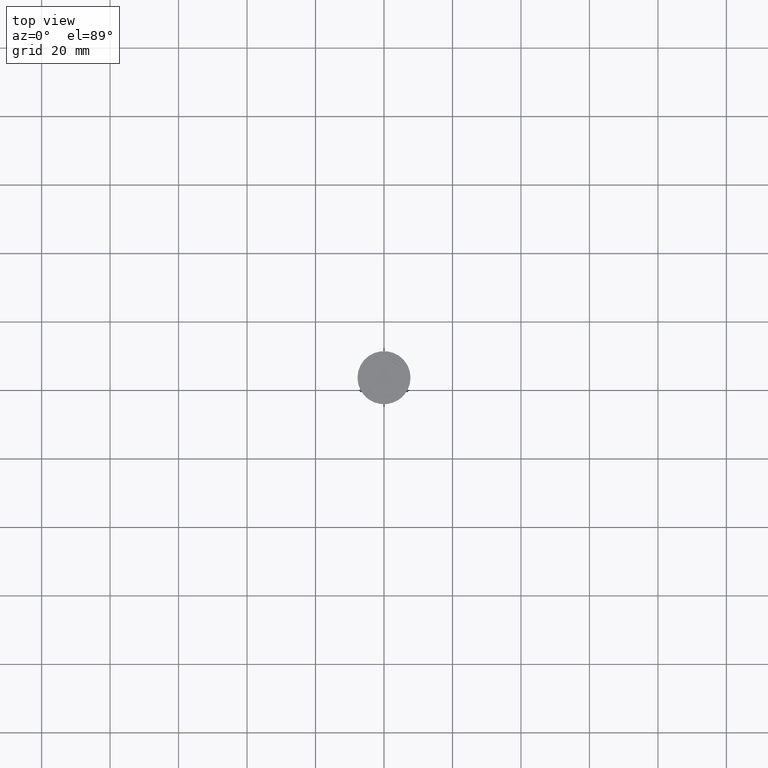
[diagram: clean part render]
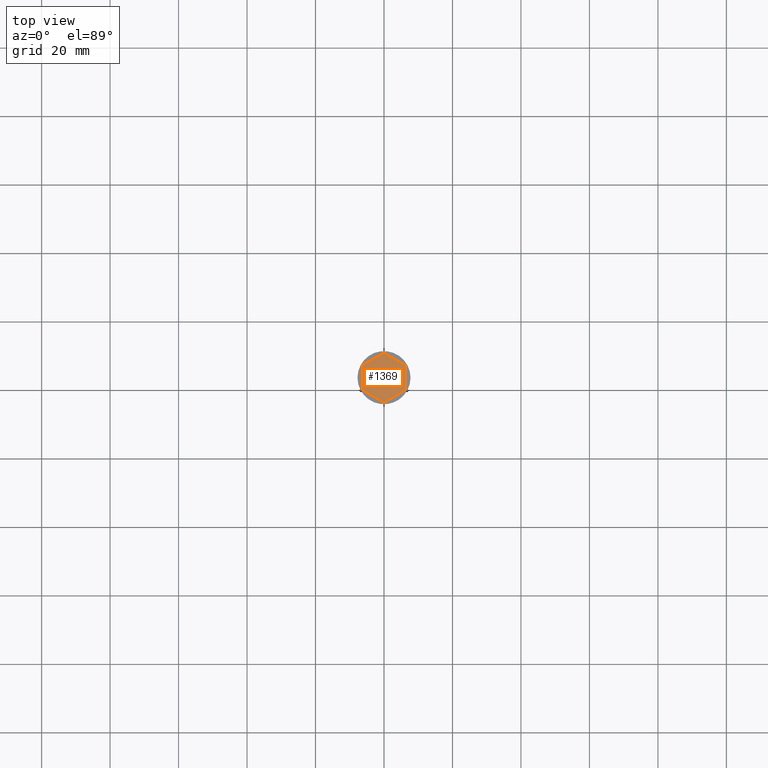
[diagram: same view with one face highlighted and labeled with its STEP entity id]
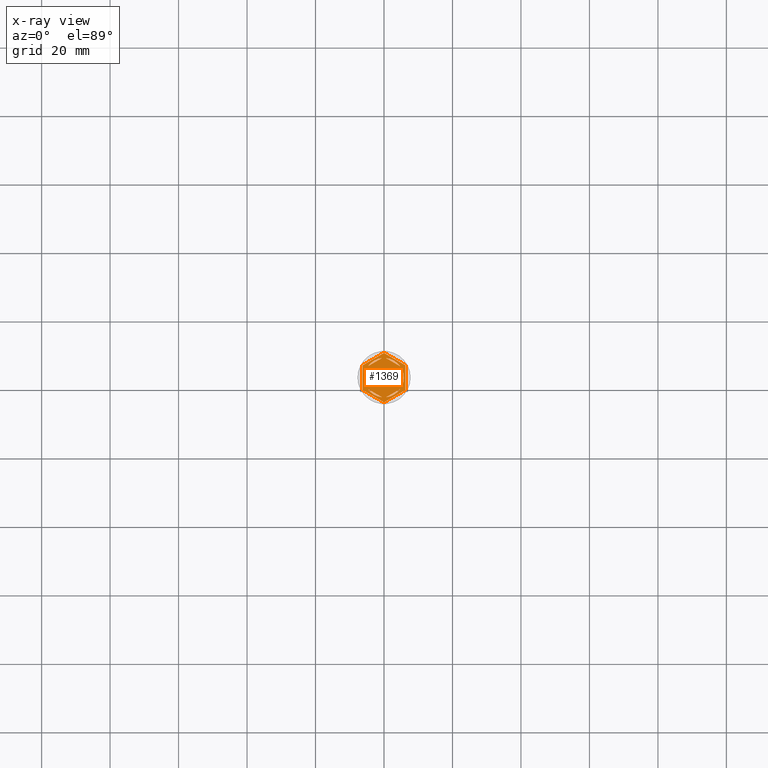
[diagram: x-ray of the same camera — body ghosted, the highlighted face saturated]
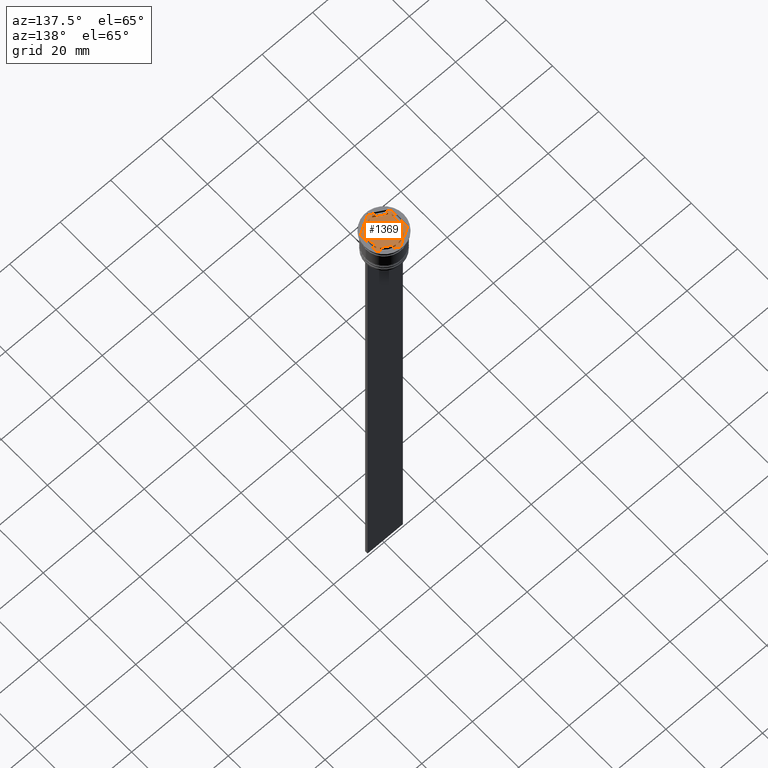
[diagram: same view with one face highlighted and labeled with its STEP entity id]
A machine part, top view. The second image highlights one B-rep face of the part: STEP entity #1369.
The next image is the same camera in x-ray: the body ghosted, the highlighted face saturated — about 0% of this face is hidden behind the body in this view.
A second angle (auxiliary view) of the same face is appended — the face is thin or edge-on in the first view.
In plain terms, the highlighted planar face has unit normal (0, 0, 1).
Its self-contained STEP definition (entity closure, byte-faithful):
#1 = CIRCLE ( 'NONE', #1660, 5.750000000000000000 ) ;
#61 = VERTEX_POINT ( 'NONE', #403 ) ;
#65 = ORIENTED_EDGE ( 'NONE', *, *, #239, .F. ) ;
#70 = VECTOR ( 'NONE', #743, 1000.000000000000000 ) ;
#86 = CARTESIAN_POINT ( 'NONE',  ( -5.249999999999999112, -2.345207879911715310, -1.000000000000000888 ) ) ;
#102 = DIRECTION ( 'NONE',  ( 0.000000000000000000, 0.000000000000000000, 1.000000000000000000 ) ) ;
#105 = CARTESIAN_POINT ( 'NONE',  ( 0.000000000000000000, 0.000000000000000000, -1.000000000000000000 ) ) ;
#107 = EDGE_CURVE ( 'NONE', #1466, #610, #1367, .T. ) ;
#123 = VECTOR ( 'NONE', #1155, 1000.000000000000000 ) ;
#125 = VECTOR ( 'NONE', #584, 1000.000000000000000 ) ;
#156 = DIRECTION ( 'NONE',  ( 0.000000000000000000, -1.000000000000000000, 0.000000000000000000 ) ) ;
#181 = CARTESIAN_POINT ( 'NONE',  ( 0.000000000000000000, 0.000000000000000000, -1.000000000000000000 ) ) ;
#196 = AXIS2_PLACEMENT_3D ( 'NONE', #859, #1916, #1370 ) ;
#213 = ORIENTED_EDGE ( 'NONE', *, *, #1393, .F. ) ;
#219 = CARTESIAN_POINT ( 'NONE',  ( 0.5939903988410074609, -5.719237309824160675, -1.000000000000000888 ) ) ;
#239 = EDGE_CURVE ( 'NONE', #2250, #1602, #1436, .T. ) ;
#287 = DIRECTION ( 'NONE',  ( -0.8660254037844384856, 0.5000000000000002220, 0.000000000000000000 ) ) ;
#308 = VERTEX_POINT ( 'NONE', #1133 ) ;
#344 = EDGE_CURVE ( 'NONE', #1278, #61, #1632, .T. ) ;
#357 = VERTEX_POINT ( 'NONE', #1282 ) ;
#374 = VERTEX_POINT ( 'NONE', #86 ) ;
#376 = CARTESIAN_POINT ( 'NONE',  ( -5.249999999999999112, 3.031088913245535199, -1.000000000000000888 ) ) ;
#392 = CIRCLE ( 'NONE', #2008, 5.750000000000000000 ) ;
#398 = VERTEX_POINT ( 'NONE', #1142 ) ;
#403 = CARTESIAN_POINT ( 'NONE',  ( 6.250000000000000000, 3.608439182435161374, -1.000000000000000000 ) ) ;
#407 = CARTESIAN_POINT ( 'NONE',  ( -0.5939903988410105695, -5.719237309824160675, -1.000000000000000888 ) ) ;
#415 = EDGE_CURVE ( 'NONE', #754, #1067, #966, .T. ) ;
#421 = ORIENTED_EDGE ( 'NONE', *, *, #1636, .F. ) ;
#425 = CARTESIAN_POINT ( 'NONE',  ( 4.656009601158990208, -3.374029429912445810, -1.000000000000000888 ) ) ;
#440 = DIRECTION ( 'NONE',  ( 0.000000000000000000, 0.000000000000000000, 1.000000000000000000 ) ) ;
#441 = ORIENTED_EDGE ( 'NONE', *, *, #2098, .F. ) ;
#453 = CARTESIAN_POINT ( 'NONE',  ( 0.000000000000000000, 0.000000000000000000, -1.000000000000000000 ) ) ;
#470 = CARTESIAN_POINT ( 'NONE',  ( -5.249999999999999112, -3.031088913245534311, -1.000000000000000888 ) ) ;
#475 = DIRECTION ( 'NONE',  ( 1.000000000000000000, 0.000000000000000000, 0.000000000000000000 ) ) ;
#483 = ORIENTED_EDGE ( 'NONE', *, *, #2014, .F. ) ;
#510 = CARTESIAN_POINT ( 'NONE',  ( -6.249999999999999112, -3.608439182435161374, -1.000000000000000000 ) ) ;
#542 = VERTEX_POINT ( 'NONE', #1951 ) ;
#545 = CIRCLE ( 'NONE', #949, 5.750000000000000000 ) ;
#584 = DIRECTION ( 'NONE',  ( 0.000000000000000000, 1.000000000000000000, 0.000000000000000000 ) ) ;
#610 = VERTEX_POINT ( 'NONE', #1244 ) ;
#620 = DIRECTION ( 'NONE',  ( -0.8660254037844385966, -0.5000000000000001110, 0.000000000000000000 ) ) ;
#648 = DIRECTION ( 'NONE',  ( 0.8660254037844387076, 0.4999999999999999445, -0.000000000000000000 ) ) ;
#661 = CARTESIAN_POINT ( 'NONE',  ( 0.000000000000000000, 0.000000000000000000, -1.000000000000000000 ) ) ;
#704 = EDGE_CURVE ( 'NONE', #357, #2233, #724, .T. ) ;
#713 = DIRECTION ( 'NONE',  ( 1.000000000000000000, 0.000000000000000000, 0.000000000000000000 ) ) ;
#724 = CIRCLE ( 'NONE', #909, 5.750000000000000000 ) ;
#725 = DIRECTION ( 'NONE',  ( 0.000000000000000000, 0.000000000000000000, 1.000000000000000000 ) ) ;
#730 = VECTOR ( 'NONE', #2223, 1000.000000000000114 ) ;
#742 = ORIENTED_EDGE ( 'NONE', *, *, #752, .T. ) ;
#743 = DIRECTION ( 'NONE',  ( 2.403703357979454647E-16, 1.000000000000000000, 0.000000000000000000 ) ) ;
#752 = EDGE_CURVE ( 'NONE', #610, #1278, #1630, .T. ) ;
#754 = VERTEX_POINT ( 'NONE', #407 ) ;
#775 = CARTESIAN_POINT ( 'NONE',  ( 0.000000000000000000, 7.216878364870320084, -1.000000000000000000 ) ) ;
#777 = VERTEX_POINT ( 'NONE', #1074 ) ;
#780 = FACE_BOUND ( 'NONE', #1516, .T. ) ;
#789 = EDGE_LOOP ( 'NONE', ( #2319, #1109, #1050 ) ) ;
#818 = EDGE_CURVE ( 'NONE', #1721, #1748, #1287, .T. ) ;
#848 = ORIENTED_EDGE ( 'NONE', *, *, #818, .F. ) ;
#851 = DIRECTION ( 'NONE',  ( 0.8660254037844387076, -0.4999999999999998335, 0.000000000000000000 ) ) ;
#859 = CARTESIAN_POINT ( 'NONE',  ( 0.000000000000000000, 0.000000000000000000, -1.000000000000000000 ) ) ;
#865 = CARTESIAN_POINT ( 'NONE',  ( 0.000000000000000000, 0.000000000000000000, -1.000000000000000000 ) ) ;
#868 = VECTOR ( 'NONE', #648, 1000.000000000000000 ) ;
#884 = DIRECTION ( 'NONE',  ( 0.8660254037844385966, -0.4999999999999998890, 0.000000000000000000 ) ) ;
#891 = CARTESIAN_POINT ( 'NONE',  ( -6.249999999999999112, 3.608439182435158710, -1.000000000000000000 ) ) ;
#893 = EDGE_LOOP ( 'NONE', ( #441, #65 ) ) ;
#909 = AXIS2_PLACEMENT_3D ( 'NONE', #181, #1456, #1985 ) ;
#916 = CARTESIAN_POINT ( 'NONE',  ( 6.249999999999998224, -3.608439182435161374, -1.000000000000000000 ) ) ;
#922 = LINE ( 'NONE', #376, #125 ) ;
#938 = CARTESIAN_POINT ( 'NONE',  ( 5.249999999999996447, -3.031088913245536975, -1.000000000000000888 ) ) ;
#949 = AXIS2_PLACEMENT_3D ( 'NONE', #105, #1346, #475 ) ;
#966 = LINE ( 'NONE', #470, #1395 ) ;
#969 = CARTESIAN_POINT ( 'NONE',  ( -0.5939903988410105695, 5.719237309824159787, -1.000000000000000888 ) ) ;
#989 = VERTEX_POINT ( 'NONE', #891 ) ;
#1006 = ORIENTED_EDGE ( 'NONE', *, *, #1381, .F. ) ;
#1017 = CARTESIAN_POINT ( 'NONE',  ( 5.249999999999997335, 3.031088913245537864, -1.000000000000000888 ) ) ;
#1050 = ORIENTED_EDGE ( 'NONE', *, *, #2247, .F. ) ;
#1066 = ORIENTED_EDGE ( 'NONE', *, *, #415, .F. ) ;
#1067 = VERTEX_POINT ( 'NONE', #1908 ) ;
#1074 = CARTESIAN_POINT ( 'NONE',  ( 5.249999999999997335, 2.345207879911718862, -1.000000000000000888 ) ) ;
#1079 = CARTESIAN_POINT ( 'NONE',  ( 0.000000000000000000, 0.000000000000000000, -1.000000000000000000 ) ) ;
#1093 = DIRECTION ( 'NONE',  ( 1.000000000000000000, 0.000000000000000000, 0.000000000000000000 ) ) ;
#1109 = ORIENTED_EDGE ( 'NONE', *, *, #2274, .F. ) ;
#1115 = CARTESIAN_POINT ( 'NONE',  ( 0.5939903988410126789, 5.719237309824160675, -1.000000000000000888 ) ) ;
#1126 = FACE_BOUND ( 'NONE', #2331, .T. ) ;
#1133 = CARTESIAN_POINT ( 'NONE',  ( -5.750000000000000000, 0.000000000000000000, -1.000000000000000000 ) ) ;
#1138 = FACE_BOUND ( 'NONE', #2236, .T. ) ;
#1142 = CARTESIAN_POINT ( 'NONE',  ( 5.249999999999997335, -2.345207879911720639, -1.000000000000000888 ) ) ;
#1155 = DIRECTION ( 'NONE',  ( -1.430775808321103440E-16, -1.000000000000000000, 0.000000000000000000 ) ) ;
#1163 = ORIENTED_EDGE ( 'NONE', *, *, #344, .T. ) ;
#1237 = FACE_OUTER_BOUND ( 'NONE', #2204, .T. ) ;
#1244 = CARTESIAN_POINT ( 'NONE',  ( 8.729740977282959667E-16, -7.216878364870321860, -1.000000000000000000 ) ) ;
#1261 = CARTESIAN_POINT ( 'NONE',  ( -6.249999999999999112, -3.608439182435161374, -1.000000000000000000 ) ) ;
#1278 = VERTEX_POINT ( 'NONE', #2062 ) ;
#1282 = CARTESIAN_POINT ( 'NONE',  ( 4.656009601158988431, 3.374029429912448919, -1.000000000000000888 ) ) ;
#1287 = CIRCLE ( 'NONE', #2001, 5.750000000000000000 ) ;
#1328 = LINE ( 'NONE', #1686, #1362 ) ;
#1340 = LINE ( 'NONE', #938, #123 ) ;
#1346 = DIRECTION ( 'NONE',  ( 0.000000000000000000, 0.000000000000000000, 1.000000000000000000 ) ) ;
#1362 = VECTOR ( 'NONE', #620, 1000.000000000000114 ) ;
#1367 = LINE ( 'NONE', #1261, #1917 ) ;
#1369 = ADVANCED_FACE ( 'NONE', ( #1126, #780, #1138, #2279, #1387, #1759, #1237 ), #1767, .T. ) ;
#1370 = DIRECTION ( 'NONE',  ( 1.000000000000000000, 0.000000000000000000, -0.000000000000000000 ) ) ;
#1373 = DIRECTION ( 'NONE',  ( 1.000000000000000000, 0.000000000000000000, 0.000000000000000000 ) ) ;
#1381 = EDGE_CURVE ( 'NONE', #2233, #357, #1730, .T. ) ;
#1387 = FACE_BOUND ( 'NONE', #789, .T. ) ;
#1393 = EDGE_CURVE ( 'NONE', #1067, #754, #1, .T. ) ;
#1395 = VECTOR ( 'NONE', #287, 1000.000000000000114 ) ;
#1402 = DIRECTION ( 'NONE',  ( -0.8660254037844388186, 0.4999999999999997224, 0.000000000000000000 ) ) ;
#1403 = AXIS2_PLACEMENT_3D ( 'NONE', #661, #440, #2053 ) ;
#1436 = LINE ( 'NONE', #2332, #868 ) ;
#1437 = ORIENTED_EDGE ( 'NONE', *, *, #1463, .T. ) ;
#1456 = DIRECTION ( 'NONE',  ( 0.000000000000000000, 0.000000000000000000, 1.000000000000000000 ) ) ;
#1463 = EDGE_CURVE ( 'NONE', #61, #1692, #1574, .T. ) ;
#1466 = VERTEX_POINT ( 'NONE', #510 ) ;
#1470 = ORIENTED_EDGE ( 'NONE', *, *, #2087, .T. ) ;
#1516 = EDGE_LOOP ( 'NONE', ( #483, #1798 ) ) ;
#1574 = LINE ( 'NONE', #2296, #1850 ) ;
#1590 = EDGE_LOOP ( 'NONE', ( #213, #1066 ) ) ;
#1602 = VERTEX_POINT ( 'NONE', #969 ) ;
#1630 = LINE ( 'NONE', #2200, #2304 ) ;
#1632 = LINE ( 'NONE', #916, #70 ) ;
#1636 = EDGE_CURVE ( 'NONE', #1748, #1721, #1865, .T. ) ;
#1650 = EDGE_CURVE ( 'NONE', #1692, #989, #1328, .T. ) ;
#1660 = AXIS2_PLACEMENT_3D ( 'NONE', #1946, #102, #2119 ) ;
#1686 = CARTESIAN_POINT ( 'NONE',  ( 0.000000000000000000, 7.216878364870320084, -1.000000000000000000 ) ) ;
#1692 = VERTEX_POINT ( 'NONE', #775 ) ;
#1721 = VERTEX_POINT ( 'NONE', #219 ) ;
#1725 = EDGE_CURVE ( 'NONE', #777, #398, #1340, .T. ) ;
#1730 = LINE ( 'NONE', #1017, #2308 ) ;
#1745 = VECTOR ( 'NONE', #156, 1000.000000000000000 ) ;
#1748 = VERTEX_POINT ( 'NONE', #425 ) ;
#1759 = FACE_BOUND ( 'NONE', #893, .T. ) ;
#1767 = PLANE ( 'NONE',  #196 ) ;
#1784 = CARTESIAN_POINT ( 'NONE',  ( -6.249999999999999112, 3.608439182435158710, -1.000000000000000000 ) ) ;
#1798 = ORIENTED_EDGE ( 'NONE', *, *, #1725, .F. ) ;
#1850 = VECTOR ( 'NONE', #1402, 1000.000000000000000 ) ;
#1853 = DIRECTION ( 'NONE',  ( 0.000000000000000000, 0.000000000000000000, 1.000000000000000000 ) ) ;
#1865 = LINE ( 'NONE', #2033, #730 ) ;
#1890 = CIRCLE ( 'NONE', #1403, 5.750000000000000000 ) ;
#1908 = CARTESIAN_POINT ( 'NONE',  ( -4.656009601158991096, -3.374029429912444034, -1.000000000000000888 ) ) ;
#1915 = ORIENTED_EDGE ( 'NONE', *, *, #704, .F. ) ;
#1916 = DIRECTION ( 'NONE',  ( 0.000000000000000000, 0.000000000000000000, 1.000000000000000000 ) ) ;
#1917 = VECTOR ( 'NONE', #884, 1000.000000000000227 ) ;
#1928 = EDGE_CURVE ( 'NONE', #542, #308, #1890, .T. ) ;
#1932 = AXIS2_PLACEMENT_3D ( 'NONE', #865, #725, #713 ) ;
#1939 = ORIENTED_EDGE ( 'NONE', *, *, #1650, .T. ) ;
#1946 = CARTESIAN_POINT ( 'NONE',  ( 0.000000000000000000, 0.000000000000000000, -1.000000000000000000 ) ) ;
#1951 = CARTESIAN_POINT ( 'NONE',  ( -5.249999999999999112, 2.345207879911715310, -1.000000000000000888 ) ) ;
#1985 = DIRECTION ( 'NONE',  ( 1.000000000000000000, 0.000000000000000000, 0.000000000000000000 ) ) ;
#2001 = AXIS2_PLACEMENT_3D ( 'NONE', #453, #1853, #1373 ) ;
#2008 = AXIS2_PLACEMENT_3D ( 'NONE', #1079, #2017, #1093 ) ;
#2014 = EDGE_CURVE ( 'NONE', #398, #777, #545, .T. ) ;
#2017 = DIRECTION ( 'NONE',  ( 0.000000000000000000, 0.000000000000000000, 1.000000000000000000 ) ) ;
#2033 = CARTESIAN_POINT ( 'NONE',  ( -1.734723475976807094E-15, -6.062177826491069510, -1.000000000000000888 ) ) ;
#2046 = CIRCLE ( 'NONE', #1932, 5.750000000000000000 ) ;
#2053 = DIRECTION ( 'NONE',  ( 1.000000000000000000, 0.000000000000000000, 0.000000000000000000 ) ) ;
#2062 = CARTESIAN_POINT ( 'NONE',  ( 6.249999999999998224, -3.608439182435161374, -1.000000000000000000 ) ) ;
#2087 = EDGE_CURVE ( 'NONE', #989, #1466, #2291, .T. ) ;
#2098 = EDGE_CURVE ( 'NONE', #1602, #2250, #2046, .T. ) ;
#2119 = DIRECTION ( 'NONE',  ( 1.000000000000000000, 0.000000000000000000, 0.000000000000000000 ) ) ;
#2162 = ORIENTED_EDGE ( 'NONE', *, *, #107, .T. ) ;
#2169 = DIRECTION ( 'NONE',  ( 0.8660254037844385966, 0.5000000000000001110, 0.000000000000000000 ) ) ;
#2200 = CARTESIAN_POINT ( 'NONE',  ( 8.729740977282959667E-16, -7.216878364870321860, -1.000000000000000000 ) ) ;
#2204 = EDGE_LOOP ( 'NONE', ( #1437, #1939, #1470, #2162, #742, #1163 ) ) ;
#2208 = CARTESIAN_POINT ( 'NONE',  ( -4.656009601158989319, 3.374029429912446698, -1.000000000000000888 ) ) ;
#2223 = DIRECTION ( 'NONE',  ( -0.8660254037844387076, -0.4999999999999997224, 0.000000000000000000 ) ) ;
#2233 = VERTEX_POINT ( 'NONE', #1115 ) ;
#2236 = EDGE_LOOP ( 'NONE', ( #848, #421 ) ) ;
#2247 = EDGE_CURVE ( 'NONE', #308, #374, #392, .T. ) ;
#2250 = VERTEX_POINT ( 'NONE', #2208 ) ;
#2274 = EDGE_CURVE ( 'NONE', #374, #542, #922, .T. ) ;
#2279 = FACE_BOUND ( 'NONE', #1590, .T. ) ;
#2291 = LINE ( 'NONE', #1784, #1745 ) ;
#2296 = CARTESIAN_POINT ( 'NONE',  ( 6.250000000000000000, 3.608439182435161374, -1.000000000000000000 ) ) ;
#2304 = VECTOR ( 'NONE', #2169, 1000.000000000000000 ) ;
#2308 = VECTOR ( 'NONE', #851, 1000.000000000000114 ) ;
#2319 = ORIENTED_EDGE ( 'NONE', *, *, #1928, .F. ) ;
#2331 = EDGE_LOOP ( 'NONE', ( #1915, #1006 ) ) ;
#2332 = CARTESIAN_POINT ( 'NONE',  ( 8.673617379884035472E-16, 6.062177826491070398, -1.000000000000000888 ) ) ;